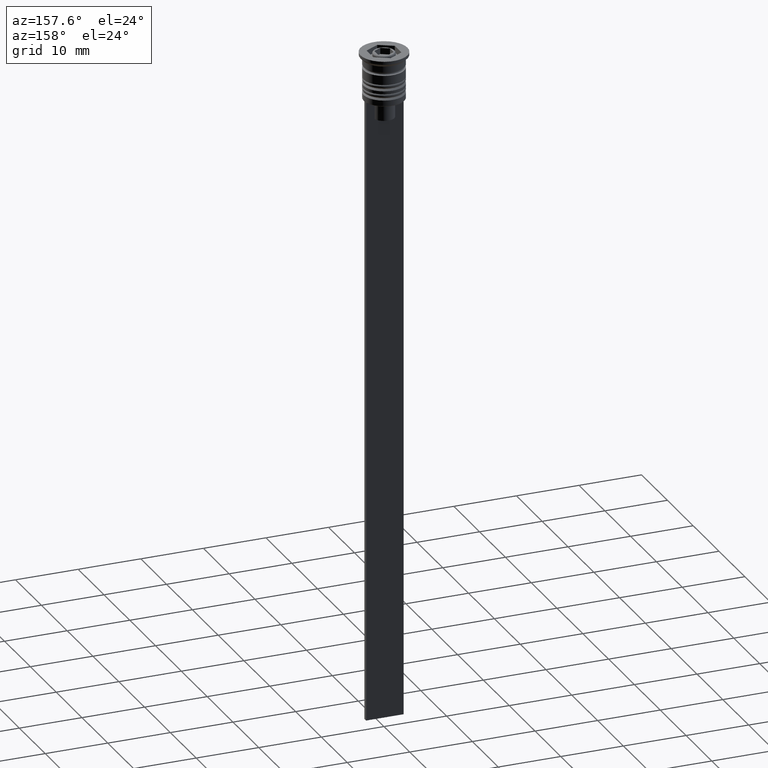
[diagram: clean part render]
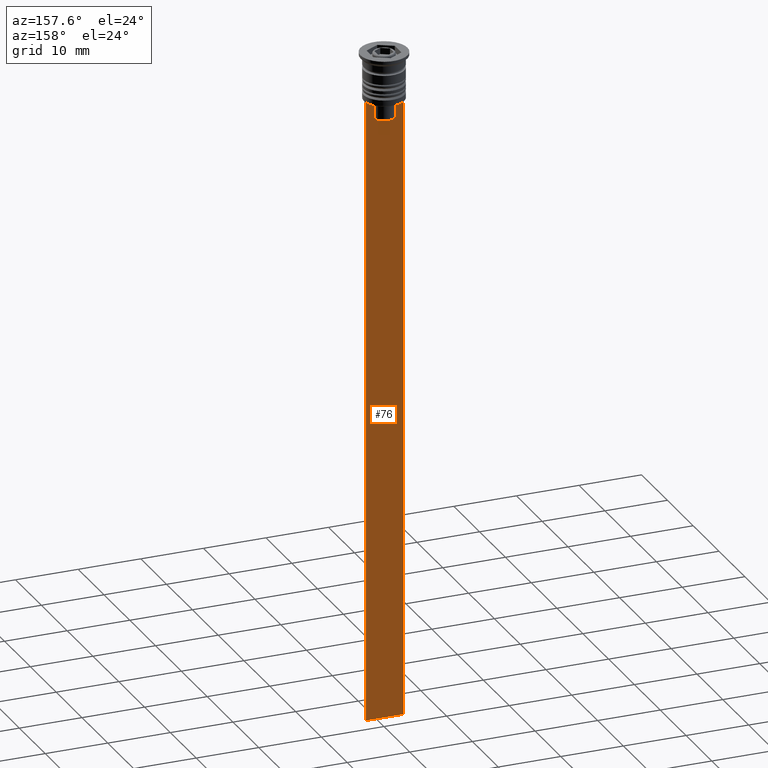
[diagram: same view with one face highlighted and labeled with its STEP entity id]
A machine part, auxiliary view. The second image highlights one B-rep face of the part: STEP entity #76.
In plain terms, the highlighted planar face has unit normal (0, -1, -0).
Its self-contained STEP definition (entity closure, byte-faithful):
#34 = CARTESIAN_POINT ( 'NONE',  ( -1.612451549659713601, 0.3500000000000000333, -10.49999999999999822 ) ) ;
#38 = EDGE_CURVE ( 'NONE', #1101, #573, #1375, .T. ) ;
#76 = ADVANCED_FACE ( 'NONE', ( #705 ), #542, .F. ) ;
#86 = AXIS2_PLACEMENT_3D ( 'NONE', #1200, #368, #1354 ) ;
#99 = CARTESIAN_POINT ( 'NONE',  ( 2.121320343559647270, 0.3500000000000000333, -7.500000000000000000 ) ) ;
#131 = CARTESIAN_POINT ( 'NONE',  ( 1.612451549659713601, 0.3500000000000000333, 0.000000000000000000 ) ) ;
#182 = CARTESIAN_POINT ( 'NONE',  ( 1.612451549659713601, 0.3500000000000000333, -8.000000000000000000 ) ) ;
#230 = VECTOR ( 'NONE', #1891, 1000.000000000000000 ) ;
#240 = VECTOR ( 'NONE', #1941, 1000.000000000000000 ) ;
#245 = EDGE_CURVE ( 'NONE', #1966, #573, #2042, .T. ) ;
#246 = ORIENTED_EDGE ( 'NONE', *, *, #1875, .T. ) ;
#259 = B_SPLINE_CURVE_WITH_KNOTS ( 'NONE', 3,
 ( #836, #2027, #527, #311 ),
 .UNSPECIFIED., .F., .F.,
 ( 4, 4 ),
 ( 0.003684653461239336628, 0.004398058763641255961 ),
 .UNSPECIFIED. ) ;
#261 = CARTESIAN_POINT ( 'NONE',  ( 1.952040775369266346, 0.3500000000000000333, -7.667021484535463394 ) ) ;
#302 = VECTOR ( 'NONE', #346, 1000.000000000000000 ) ;
#311 = CARTESIAN_POINT ( 'NONE',  ( -1.612451549659713601, 0.3500000000000000333, -8.000000000000000000 ) ) ;
#346 = DIRECTION ( 'NONE',  ( 0.000000000000000000, 0.000000000000000000, -1.000000000000000000 ) ) ;
#368 = DIRECTION ( 'NONE',  ( 0.000000000000000000, -1.000000000000000000, -0.000000000000000000 ) ) ;
#384 = CARTESIAN_POINT ( 'NONE',  ( -3.000000000000004441, 0.3500000000000000333, -1.459304675784417915 ) ) ;
#423 = VERTEX_POINT ( 'NONE', #1264 ) ;
#431 = ORIENTED_EDGE ( 'NONE', *, *, #38, .F. ) ;
#523 = CARTESIAN_POINT ( 'NONE',  ( 2.999999999999995559, 0.3500000000000000333, -1.459304675784417915 ) ) ;
#527 = CARTESIAN_POINT ( 'NONE',  ( -1.782527878033863589, 0.3500000000000000333, -7.833794036819862860 ) ) ;
#532 = LINE ( 'NONE', #523, #302 ) ;
#542 = PLANE ( 'NONE',  #86 ) ;
#569 = CARTESIAN_POINT ( 'NONE',  ( -3.000000000000004441, 0.3499999999999999223, -7.500000000000000000 ) ) ;
#573 = VERTEX_POINT ( 'NONE', #1325 ) ;
#580 = VERTEX_POINT ( 'NONE', #991 ) ;
#585 = DIRECTION ( 'NONE',  ( -1.000000000000000000, 0.000000000000000000, 0.000000000000000000 ) ) ;
#591 = CARTESIAN_POINT ( 'NONE',  ( -1.612451549659713601, 0.3500000000000000333, 0.000000000000000000 ) ) ;
#622 = CARTESIAN_POINT ( 'NONE',  ( 0.000000000000000000, 0.3500000000000000333, -10.49999999999999822 ) ) ;
#702 = CARTESIAN_POINT ( 'NONE',  ( 2.999999999999995559, 0.3500000000000000333, -107.5000000000000000 ) ) ;
#705 = FACE_OUTER_BOUND ( 'NONE', #716, .T. ) ;
#716 = EDGE_LOOP ( 'NONE', ( #999, #1267, #1452, #1905, #1279, #1482, #246, #968, #1320, #431 ) ) ;
#766 = VERTEX_POINT ( 'NONE', #1939 ) ;
#786 = DIRECTION ( 'NONE',  ( 1.000000000000000000, 0.000000000000000000, 0.000000000000000000 ) ) ;
#836 = CARTESIAN_POINT ( 'NONE',  ( -2.121320343559647270, 0.3500000000000000333, -7.500000000000000000 ) ) ;
#865 = EDGE_CURVE ( 'NONE', #580, #1944, #2091, .T. ) ;
#938 = VERTEX_POINT ( 'NONE', #1946 ) ;
#961 = EDGE_CURVE ( 'NONE', #1101, #766, #1985, .T. ) ;
#968 = ORIENTED_EDGE ( 'NONE', *, *, #1188, .T. ) ;
#991 = CARTESIAN_POINT ( 'NONE',  ( -1.612451549659713601, 0.3500000000000000333, -8.000000000000000000 ) ) ;
#999 = ORIENTED_EDGE ( 'NONE', *, *, #961, .T. ) ;
#1094 = CARTESIAN_POINT ( 'NONE',  ( 1.782523989086206795, 0.3500000000000000333, -7.833797837268088315 ) ) ;
#1101 = VERTEX_POINT ( 'NONE', #569 ) ;
#1106 = VECTOR ( 'NONE', #786, 1000.000000000000000 ) ;
#1121 = VERTEX_POINT ( 'NONE', #182 ) ;
#1139 = VECTOR ( 'NONE', #585, 1000.000000000000000 ) ;
#1188 = EDGE_CURVE ( 'NONE', #423, #1966, #532, .T. ) ;
#1195 = DIRECTION ( 'NONE',  ( -0.000000000000000000, -0.000000000000000000, 1.000000000000000000 ) ) ;
#1200 = CARTESIAN_POINT ( 'NONE',  ( 2.999999999999995559, 0.3500000000000000333, -1.459304675784417915 ) ) ;
#1233 = CARTESIAN_POINT ( 'NONE',  ( 1.612451549659713601, 0.3500000000000000333, -10.49999999999999822 ) ) ;
#1250 = DIRECTION ( 'NONE',  ( 0.000000000000000000, 0.000000000000000000, -1.000000000000000000 ) ) ;
#1264 = CARTESIAN_POINT ( 'NONE',  ( 2.999999999999995559, 0.3500000000000000333, -7.500000000000000000 ) ) ;
#1267 = ORIENTED_EDGE ( 'NONE', *, *, #1934, .T. ) ;
#1279 = ORIENTED_EDGE ( 'NONE', *, *, #1371, .T. ) ;
#1320 = ORIENTED_EDGE ( 'NONE', *, *, #245, .T. ) ;
#1325 = CARTESIAN_POINT ( 'NONE',  ( -3.000000000000004441, 0.3500000000000000333, -107.5000000000000000 ) ) ;
#1341 = CARTESIAN_POINT ( 'NONE',  ( 2.999999999999995559, 0.3500000000000000333, -7.500000000000000000 ) ) ;
#1343 = EDGE_CURVE ( 'NONE', #1121, #938, #2038, .T. ) ;
#1354 = DIRECTION ( 'NONE',  ( 0.000000000000000000, 0.000000000000000000, -1.000000000000000000 ) ) ;
#1367 = CARTESIAN_POINT ( 'NONE',  ( 2.999999999999995559, 0.3500000000000000333, -107.5000000000000000 ) ) ;
#1371 = EDGE_CURVE ( 'NONE', #1559, #1121, #2041, .T. ) ;
#1375 = LINE ( 'NONE', #384, #230 ) ;
#1452 = ORIENTED_EDGE ( 'NONE', *, *, #865, .T. ) ;
#1482 = ORIENTED_EDGE ( 'NONE', *, *, #1343, .T. ) ;
#1559 = VERTEX_POINT ( 'NONE', #1233 ) ;
#1586 = CARTESIAN_POINT ( 'NONE',  ( 1.612451549659713601, 0.3500000000000000333, -8.000000000000000000 ) ) ;
#1747 = EDGE_CURVE ( 'NONE', #1944, #1559, #2125, .T. ) ;
#1780 = VECTOR ( 'NONE', #1195, 1000.000000000000000 ) ;
#1820 = CARTESIAN_POINT ( 'NONE',  ( 2.999999999999995559, 0.3500000000000000333, -7.500000000000000000 ) ) ;
#1830 = DIRECTION ( 'NONE',  ( 1.000000000000000000, 0.000000000000000000, 0.000000000000000000 ) ) ;
#1875 = EDGE_CURVE ( 'NONE', #938, #423, #2012, .T. ) ;
#1887 = VECTOR ( 'NONE', #1830, 1000.000000000000000 ) ;
#1891 = DIRECTION ( 'NONE',  ( 0.000000000000000000, 0.000000000000000000, -1.000000000000000000 ) ) ;
#1905 = ORIENTED_EDGE ( 'NONE', *, *, #1747, .T. ) ;
#1934 = EDGE_CURVE ( 'NONE', #766, #580, #259, .T. ) ;
#1939 = CARTESIAN_POINT ( 'NONE',  ( -2.121320343559647270, 0.3500000000000000333, -7.500000000000000000 ) ) ;
#1941 = DIRECTION ( 'NONE',  ( 1.000000000000000000, 0.000000000000000000, 0.000000000000000000 ) ) ;
#1944 = VERTEX_POINT ( 'NONE', #34 ) ;
#1946 = CARTESIAN_POINT ( 'NONE',  ( 2.121320343559647270, 0.3500000000000000333, -7.500000000000000000 ) ) ;
#1966 = VERTEX_POINT ( 'NONE', #1367 ) ;
#1985 = LINE ( 'NONE', #1820, #1106 ) ;
#2012 = LINE ( 'NONE', #1341, #1887 ) ;
#2027 = CARTESIAN_POINT ( 'NONE',  ( -1.952043732028445167, 0.3500000000000000333, -7.667018567316270961 ) ) ;
#2038 = B_SPLINE_CURVE_WITH_KNOTS ( 'NONE', 3,
 ( #1586, #1094, #261, #99 ),
 .UNSPECIFIED., .F., .F.,
 ( 4, 4 ),
 ( 0.008600796474521226961, 0.009317962624906524910 ),
 .UNSPECIFIED. ) ;
#2041 = LINE ( 'NONE', #131, #1780 ) ;
#2042 = LINE ( 'NONE', #702, #1139 ) ;
#2091 = LINE ( 'NONE', #591, #2132 ) ;
#2125 = LINE ( 'NONE', #622, #240 ) ;
#2132 = VECTOR ( 'NONE', #1250, 1000.000000000000000 ) ;